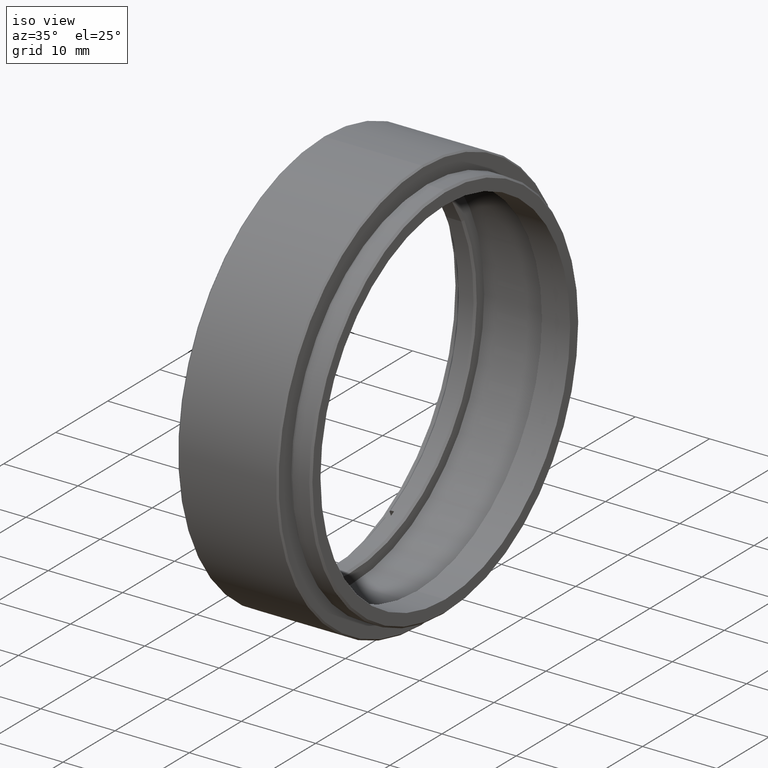
[diagram: clean part render]
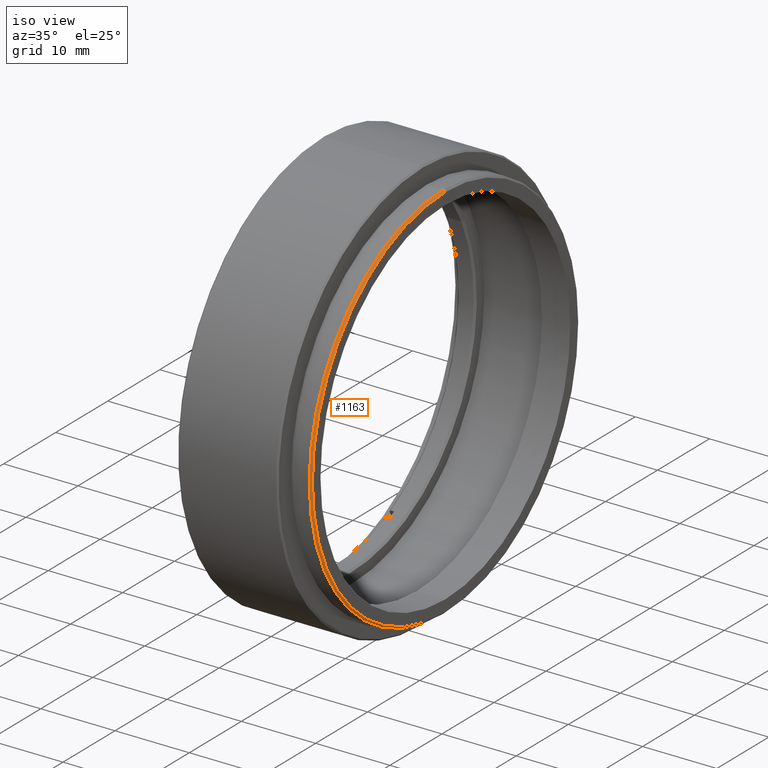
[diagram: same view with one face highlighted and labeled with its STEP entity id]
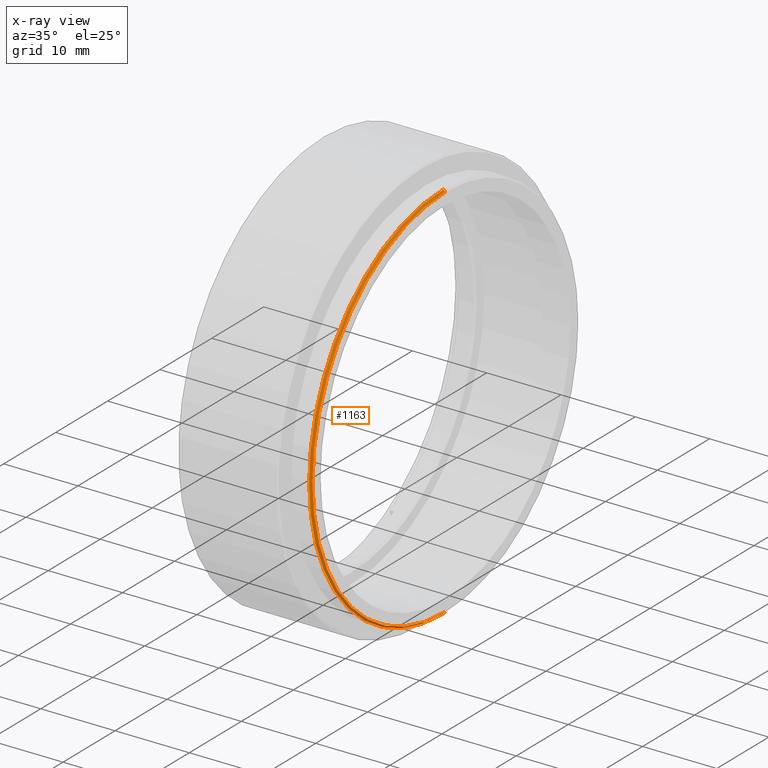
[diagram: x-ray of the same camera — body ghosted, the highlighted face saturated]
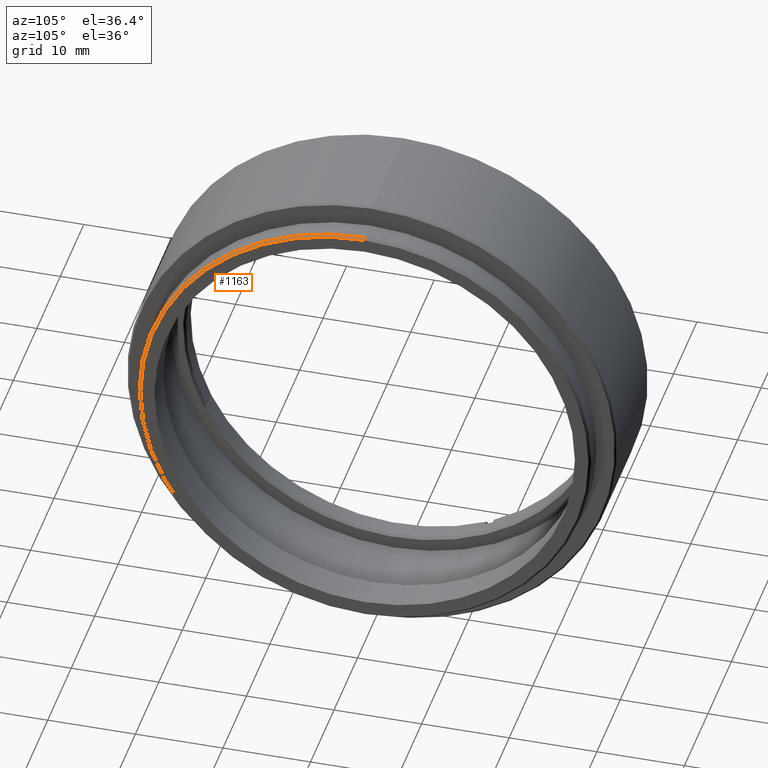
[diagram: same view with one face highlighted and labeled with its STEP entity id]
A machine part, iso view. The second image highlights one B-rep face of the part: STEP entity #1163.
The next image is the same camera in x-ray: the body ghosted, the highlighted face saturated — about 0% of this face is hidden behind the body in this view.
A second angle (auxiliary view) of the same face is appended — the face is thin or edge-on in the first view.
In plain terms, the highlighted conical surface has half-angle 45 deg.
Its self-contained STEP definition (entity closure, byte-faithful):
#87 = ORIENTED_EDGE ( 'NONE', *, *, #846, .F. ) ;
#113 = DIRECTION ( 'NONE',  ( -1.000000000000000000, 0.000000000000000000, 0.000000000000000000 ) ) ;
#168 = CARTESIAN_POINT ( 'NONE',  ( 6.525999999999982926, -20.10857142857141611, -25.55000000000002558 ) ) ;
#186 = ORIENTED_EDGE ( 'NONE', *, *, #707, .F. ) ;
#195 = CIRCLE ( 'NONE', #1360, 25.55000000000002558 ) ;
#223 = CONICAL_SURFACE ( 'NONE', #1595, 25.55000000000002558, 0.7853981633974346233 ) ;
#243 = VERTEX_POINT ( 'NONE', #1462 ) ;
#264 = ORIENTED_EDGE ( 'NONE', *, *, #1207, .T. ) ;
#300 = DIRECTION ( 'NONE',  ( -1.000000000000000000, 0.000000000000000000, 0.000000000000000000 ) ) ;
#310 = FACE_OUTER_BOUND ( 'NONE', #484, .T. ) ;
#322 = VERTEX_POINT ( 'NONE', #1475 ) ;
#333 = CARTESIAN_POINT ( 'NONE',  ( 6.525999999999982926, -20.10857142857141966, 0.000000000000000000 ) ) ;
#443 = VECTOR ( 'NONE', #1594, 1000.000000000000000 ) ;
#484 = EDGE_LOOP ( 'NONE', ( #186, #87, #264, #1061 ) ) ;
#581 = CARTESIAN_POINT ( 'NONE',  ( 6.525999999999982926, -20.10857142857141966, 25.55000000000002558 ) ) ;
#599 = VECTOR ( 'NONE', #1582, 1000.000000000000000 ) ;
#610 = DIRECTION ( 'NONE',  ( 0.000000000000000000, 0.000000000000000000, -1.000000000000000000 ) ) ;
#672 = CARTESIAN_POINT ( 'NONE',  ( 6.525999999999982926, -20.10857142857141966, 25.55000000000002558 ) ) ;
#707 = EDGE_CURVE ( 'NONE', #1199, #322, #1240, .T. ) ;
#804 = CARTESIAN_POINT ( 'NONE',  ( 6.525999999999982926, -20.10857142857141611, -25.55000000000002558 ) ) ;
#846 = EDGE_CURVE ( 'NONE', #866, #1199, #195, .T. ) ;
#866 = VERTEX_POINT ( 'NONE', #581 ) ;
#1033 = EDGE_CURVE ( 'NONE', #322, #243, #1136, .T. ) ;
#1055 = DIRECTION ( 'NONE',  ( 0.000000000000000000, 0.000000000000000000, 1.000000000000000000 ) ) ;
#1061 = ORIENTED_EDGE ( 'NONE', *, *, #1033, .F. ) ;
#1136 = CIRCLE ( 'NONE', #1144, 25.80000000000000426 ) ;
#1143 = DIRECTION ( 'NONE',  ( 0.000000000000000000, 0.000000000000000000, -1.000000000000000000 ) ) ;
#1144 = AXIS2_PLACEMENT_3D ( 'NONE', #1414, #113, #1143 ) ;
#1163 = ADVANCED_FACE ( 'NONE', ( #310 ), #223, .T. ) ;
#1199 = VERTEX_POINT ( 'NONE', #168 ) ;
#1207 = EDGE_CURVE ( 'NONE', #866, #243, #1553, .T. ) ;
#1240 = LINE ( 'NONE', #804, #443 ) ;
#1360 = AXIS2_PLACEMENT_3D ( 'NONE', #333, #1622, #610 ) ;
#1414 = CARTESIAN_POINT ( 'NONE',  ( 6.275999999999997137, -20.10857142857141966, 0.000000000000000000 ) ) ;
#1455 = CARTESIAN_POINT ( 'NONE',  ( 6.525999999999982926, -20.10857142857141966, 0.000000000000000000 ) ) ;
#1462 = CARTESIAN_POINT ( 'NONE',  ( 6.275999999999997137, -20.10857142857141966, 25.80000000000000426 ) ) ;
#1475 = CARTESIAN_POINT ( 'NONE',  ( 6.275999999999997137, -20.10857142857141611, -25.80000000000000426 ) ) ;
#1553 = LINE ( 'NONE', #672, #599 ) ;
#1582 = DIRECTION ( 'NONE',  ( -0.7071067811865573427, 0.000000000000000000, 0.7071067811865378028 ) ) ;
#1594 = DIRECTION ( 'NONE',  ( -0.7071067811865573427, 8.659560562354814529E-17, -0.7071067811865378028 ) ) ;
#1595 = AXIS2_PLACEMENT_3D ( 'NONE', #1455, #300, #1055 ) ;
#1622 = DIRECTION ( 'NONE',  ( 1.000000000000000000, 0.000000000000000000, 0.000000000000000000 ) ) ;